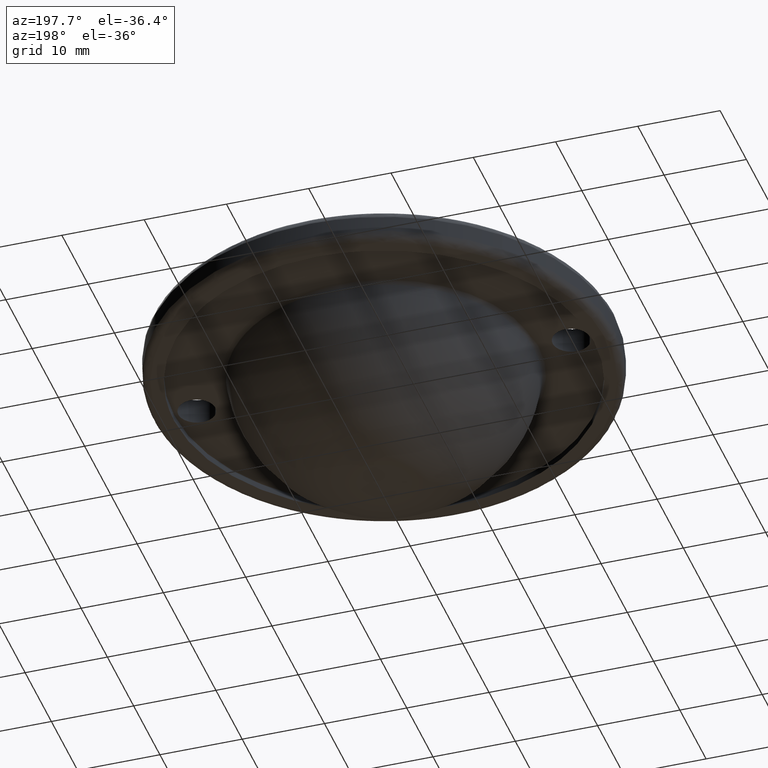
[diagram: clean part render]
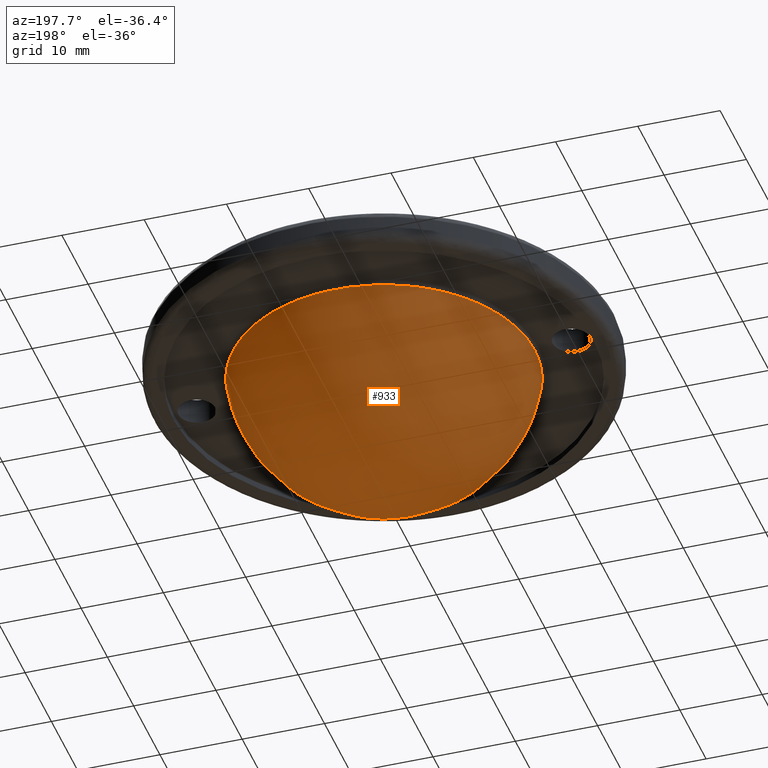
[diagram: same view with one face highlighted and labeled with its STEP entity id]
A machine part, auxiliary view. The second image highlights one B-rep face of the part: STEP entity #933.
In plain terms, the highlighted face is a freeform B-spline surface patch.
Its self-contained STEP definition (entity closure, byte-faithful):
#813=CARTESIAN_POINT('',(-12.683140932155457,12.683140929943580,7.699958816816800));
#814=CARTESIAN_POINT('',(-9.216465402960555,18.432930806808173,1.386060522407234));
#815=CARTESIAN_POINT('',(9.216465403068229,18.432930806808173,1.386060522981630));
#816=CARTESIAN_POINT('',(12.683140931869627,12.683140929943580,7.699958817607246));
#817=CARTESIAN_POINT('',(-18.432930805974955,9.216465403793777,1.386060517962275));
#818=CARTESIAN_POINT('',(-16.859629437432680,16.859629446361570,-15.399999992919540));
#819=CARTESIAN_POINT('',(16.859629438586509,16.859629446361570,-15.399999991868800));
#820=CARTESIAN_POINT('',(18.432930806082624,9.216465403793777,1.386060519111066));
#821=CARTESIAN_POINT('',(-18.432930805974955,-9.216465402235006,1.386060509646754));
#822=CARTESIAN_POINT('',(-16.859629437432680,-16.859629429657630,-15.400000008131080));
#823=CARTESIAN_POINT('',(16.859629438586509,-16.859629429657630,-15.400000007080340));
#824=CARTESIAN_POINT('',(18.432930806082624,-9.216465402235006,1.386060510795541));
#825=CARTESIAN_POINT('',(-12.683140932155457,-12.683140934081505,7.699958805373481));
#826=CARTESIAN_POINT('',(-9.216465402960555,-18.432930805249402,1.386060505776189));
#827=CARTESIAN_POINT('',(9.216465403068229,-18.432930805249402,1.386060506350582));
#828=CARTESIAN_POINT('',(12.683140931869627,-12.683140934081505,7.699958806163928));
#836=(BOUNDED_SURFACE()B_SPLINE_SURFACE(2,2,((#813,#817,#821,#825),(#814,#818,#822,#826),(#815,#819,#823,#827),(#816,#820,#824,#828)),.UNSPECIFIED.,.F.,.F.,.U.)B_SPLINE_SURFACE_WITH_KNOTS((3,1,3),(3,1,3),(0.0,23.835807067030370,47.671614134060754),(0.0,23.835807067030370,47.671614134060754),.UNSPECIFIED.)GEOMETRIC_REPRESENTATION_ITEM()RATIONAL_B_SPLINE_SURFACE(((2.658588992803116,1.829294496401558,1.829294496401558,2.658588992803116),(1.829294496401558,1.0,1.0,1.829294496401558),(1.829294496401558,1.0,1.0,1.829294496401558),(2.658588992803116,1.829294496401558,1.829294496401558,2.658588992803116)))REPRESENTATION_ITEM('')SURFACE());
#837=CARTESIAN_POINT('',(-18.309878198999339,0.0,0.373991777979846));
#838=VERTEX_POINT('',#837);
#839=CARTESIAN_POINT('',(-18.135228065478689,2.522923439490775,0.373991779123438));
#840=VERTEX_POINT('',#839);
#841=CARTESIAN_POINT('',(-18.309878198999339,0.0,0.373991777979846));
#842=CARTESIAN_POINT('',(-18.309894792796921,0.843659560746364,0.373991778360436));
#843=CARTESIAN_POINT('',(-18.251504757927950,1.687314208454262,0.373991778742850));
#844=CARTESIAN_POINT('',(-18.135228065478689,2.522923439490775,0.373991779123438));
#845=B_SPLINE_CURVE_WITH_KNOTS('',3,(#841,#842,#843,#844),.UNSPECIFIED.,.F.,.U.,(4,4),(2.191989E-010,2.530977836705076),.UNSPECIFIED.);
#846=EDGE_CURVE('',#838,#840,#845,.T.);
#847=ORIENTED_EDGE('',*,*,#846,.T.);
#848=CARTESIAN_POINT('',(1.264463038021750,18.266164701104739,0.373991778551642));
#849=VERTEX_POINT('',#848);
#850=CARTESIAN_POINT('',(-18.135228065478689,2.522923439490775,0.373991779123438));
#851=CARTESIAN_POINT('',(-17.962772717918600,3.764066792230607,0.373991779120735));
#852=CARTESIAN_POINT('',(-17.455863100666289,5.826095453593482,0.373991779109363));
#853=CARTESIAN_POINT('',(-16.373181007584598,8.290532412865405,0.373991779080878));
#854=CARTESIAN_POINT('',(-15.174782884955039,10.330020906793569,0.373991779047864));
#855=CARTESIAN_POINT('',(-13.601213012531650,12.381161543976740,0.373991779003157));
#856=CARTESIAN_POINT('',(-11.501589247765960,14.345480290135850,0.373991778941837));
#857=CARTESIAN_POINT('',(-9.419181567133361,15.750949857292669,0.373991778879838));
#858=CARTESIAN_POINT('',(-7.253393959035057,16.868683702751731,0.373991778814627));
#859=CARTESIAN_POINT('',(-5.193023262580556,17.614650872887228,0.373991778751895));
#860=CARTESIAN_POINT('',(-2.916831806380930,18.112570642380540,0.373991778681879));
#861=CARTESIAN_POINT('',(-0.884295627804840,18.330600530863329,0.373991778618904));
#862=CARTESIAN_POINT('',(0.550148508756795,18.315631700772421,0.373991778574035));
#863=CARTESIAN_POINT('',(1.264463038021750,18.266164701104739,0.373991778551642));
#864=B_SPLINE_CURVE_WITH_KNOTS('',3,(#850,#851,#852,#853,#854,#855,#856,#857,#858,#859,#860,#861,#862,#863),.UNSPECIFIED.,.F.,.U.,(4,1,1,1,1,1,1,1,1,1,1,4),(0.000000033416995,3.759154981671038,6.336881505793961,8.055359735187196,10.847885312452430,14.070013473664121,16.647739320291890,18.366215577268260,21.373554758668050,23.199443654451610,25.347547125213140,27.495623241740550),.UNSPECIFIED.);
#865=EDGE_CURVE('',#840,#849,#864,.T.);
#866=ORIENTED_EDGE('',*,*,#865,.T.);
#867=CARTESIAN_POINT('',(18.309878198999350,0.0,0.373991777979845));
#868=VERTEX_POINT('',#867);
#869=CARTESIAN_POINT('',(1.264463038021750,18.266164701104739,0.373991778551642));
#870=CARTESIAN_POINT('',(2.443117020274945,18.184726269232911,0.373991778514657));
#871=CARTESIAN_POINT('',(4.642551600449032,17.816189304387631,0.373991778445176));
#872=CARTESIAN_POINT('',(7.716608281577837,16.701977733309739,0.373991778346768));
#873=CARTESIAN_POINT('',(10.463984722686380,15.136755992237450,0.373991778257586));
#874=CARTESIAN_POINT('',(12.624413065596199,13.350331161175010,0.373991778186256));
#875=CARTESIAN_POINT('',(14.213402599777000,11.596540884212200,0.373991778132842));
#876=CARTESIAN_POINT('',(15.481551247715570,9.859423732111532,0.373991778089489));
#877=CARTESIAN_POINT('',(16.779028654813320,7.542002122435381,0.373991778043949));
#878=CARTESIAN_POINT('',(17.735091932142002,4.866074379106181,0.373991778008320));
#879=CARTESIAN_POINT('',(18.221561124750199,2.219684847729830,0.373991777987395));
#880=CARTESIAN_POINT('',(18.309892880782680,0.716025590467796,0.373991777981408));
#881=CARTESIAN_POINT('',(18.309878198999350,0.0,0.373991777979845));
#882=B_SPLINE_CURVE_WITH_KNOTS('',3,(#869,#870,#871,#872,#873,#874,#875,#876,#877,#878,#879,#880,#881),.UNSPECIFIED.,.F.,.U.,(4,1,1,1,1,1,1,1,1,1,4),(0.000000033437750,3.544359453351973,6.659105118165734,9.773848787129285,12.995997581333111,15.036664194770360,16.862556676871709,19.440289126669189,22.984653687568859,25.347579692209759,27.495658568559371),.UNSPECIFIED.);
#883=EDGE_CURVE('',#849,#868,#882,.T.);
#884=ORIENTED_EDGE('',*,*,#883,.T.);
#885=CARTESIAN_POINT('',(18.135228065478689,-2.522923439490777,0.373991779123438));
#886=VERTEX_POINT('',#885);
#887=CARTESIAN_POINT('',(18.309878198999350,0.0,0.373991777979845));
#888=CARTESIAN_POINT('',(18.309897060315269,-0.843659609909468,0.373991778360436));
#889=CARTESIAN_POINT('',(18.251503446135761,-1.687314441809140,0.373991778742848));
#890=CARTESIAN_POINT('',(18.135228065478689,-2.522923439490777,0.373991779123438));
#891=B_SPLINE_CURVE_WITH_KNOTS('',3,(#887,#888,#889,#890),.UNSPECIFIED.,.F.,.U.,(4,4),(2.192544E-010,2.530977836705078),.UNSPECIFIED.);
#892=EDGE_CURVE('',#868,#886,#891,.T.);
#893=ORIENTED_EDGE('',*,*,#892,.T.);
#894=CARTESIAN_POINT('',(-1.264463038021771,-18.266164701104739,0.373991778551642));
#895=VERTEX_POINT('',#894);
#896=CARTESIAN_POINT('',(18.135228065478689,-2.522923439490777,0.373991779123438));
#897=CARTESIAN_POINT('',(17.982413529167339,-3.622203163806051,0.373991779121041));
#898=CARTESIAN_POINT('',(17.557590798565140,-5.442665245024492,0.373991779111712));
#899=CARTESIAN_POINT('',(16.475439869565580,-8.139063354648808,0.373991779083745));
#900=CARTESIAN_POINT('',(15.207602421482040,-10.311321889337989,0.373991779048849));
#901=CARTESIAN_POINT('',(13.711580851691499,-12.191648142794181,0.373991779006194));
#902=CARTESIAN_POINT('',(12.168155450398061,-13.741009914027879,0.373991778961344));
#903=CARTESIAN_POINT('',(10.279369980207900,-15.228456750974789,0.373991778905577));
#904=CARTESIAN_POINT('',(8.009081455788364,-16.538436219454461,0.373991778837505));
#905=CARTESIAN_POINT('',(5.773018103280441,-17.422960831235169,0.373991778769592));
#906=CARTESIAN_POINT('',(3.415184807141466,-18.041253139667571,0.373991778697296));
#907=CARTESIAN_POINT('',(1.135333784548029,-18.333274657062031,0.373991778626729));
#908=CARTESIAN_POINT('',(-0.550150274441721,-18.315620978989561,0.373991778574060));
#909=CARTESIAN_POINT('',(-1.264463038021771,-18.266164701104739,0.373991778551642));
#910=B_SPLINE_CURVE_WITH_KNOTS('',3,(#896,#897,#898,#899,#900,#901,#902,#903,#904,#905,#906,#907,#908,#909),.UNSPECIFIED.,.F.,.U.,(4,1,1,1,1,1,1,1,1,1,1,4),(0.000000033450586,3.329532646522377,5.585046737325200,8.699790460247154,10.847885312472741,12.781193613171340,15.251469960739611,18.044002337714719,20.621718007786370,22.447607165641770,25.347547125215620,27.495623241740461),.UNSPECIFIED.);
#911=EDGE_CURVE('',#886,#895,#910,.T.);
#912=ORIENTED_EDGE('',*,*,#911,.T.);
#913=CARTESIAN_POINT('',(-1.264463038021771,-18.266164701104739,0.373991778551642));
#914=CARTESIAN_POINT('',(-2.050214980355350,-18.211798194814559,0.373991778526987));
#915=CARTESIAN_POINT('',(-3.685798334894443,-17.991875748917899,0.373991778475434));
#916=CARTESIAN_POINT('',(-6.073480087166987,-17.334820768348099,0.373991778399449));
#917=CARTESIAN_POINT('',(-8.248855431608007,-16.398572540242871,0.373991778329491));
#918=CARTESIAN_POINT('',(-10.260302466526340,-15.221136813349689,0.373991778264129));
#919=CARTESIAN_POINT('',(-11.856619299628401,-14.000613062779500,0.373991778211643));
#920=CARTESIAN_POINT('',(-13.413022799444970,-12.517465286151010,0.373991778159827));
#921=CARTESIAN_POINT('',(-14.662770231139730,-11.036678305580899,0.373991778117601));
#922=CARTESIAN_POINT('',(-15.828249875828970,-9.271870003865123,0.373991778077387));
#923=CARTESIAN_POINT('',(-16.702580553921379,-7.584508081256472,0.373991778046444));
#924=CARTESIAN_POINT('',(-17.537564134291721,-5.447686626149894,0.373991778015742));
#925=CARTESIAN_POINT('',(-18.153613708052742,-2.935717378891289,0.373991777991054));
#926=CARTESIAN_POINT('',(-18.309936222583229,-0.966639083683433,0.373991777981967));
#927=CARTESIAN_POINT('',(-18.309878198999339,0.0,0.373991777979846));
#928=B_SPLINE_CURVE_WITH_KNOTS('',3,(#913,#914,#915,#916,#917,#918,#919,#920,#921,#922,#923,#924,#925,#926,#927),.UNSPECIFIED.,.F.,.U.,(4,1,1,1,1,1,1,1,1,1,1,1,4),(0.000000033426026,2.362891480708182,4.940624827212460,7.410940997601522,9.451635868238231,11.921949163727380,13.425628374103450,15.895920662076030,17.721807203758399,19.762505156320682,21.588390377700222,24.595742115000910,27.495658568559389),.UNSPECIFIED.);
#929=EDGE_CURVE('',#895,#838,#928,.T.);
#930=ORIENTED_EDGE('',*,*,#929,.T.);
#931=EDGE_LOOP('',(#847,#866,#884,#893,#912,#930));
#932=FACE_OUTER_BOUND('',#931,.T.);
#933=ADVANCED_FACE('',(#932),#836,.T.);